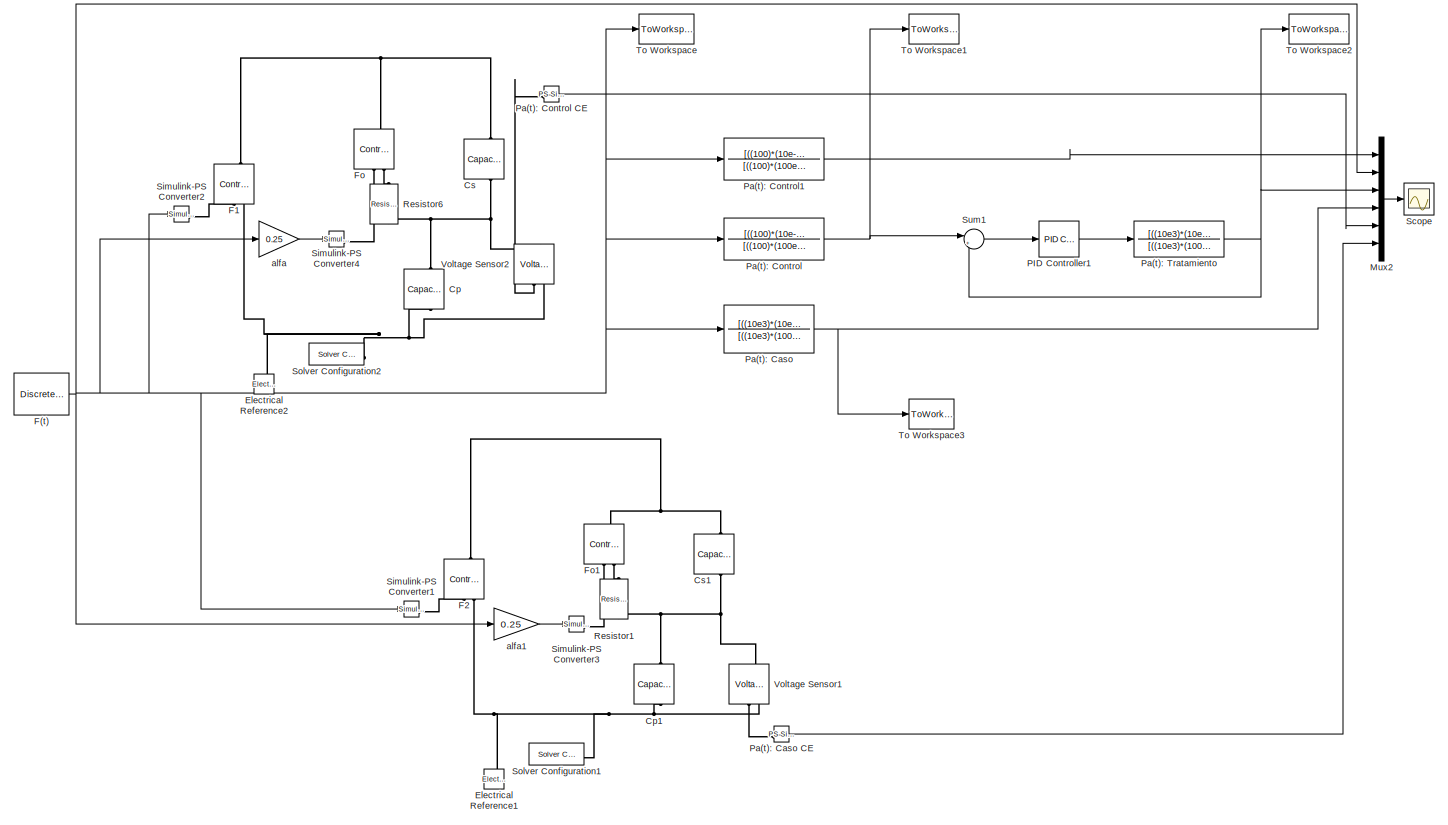
[diagram: root canvas - part 1/1, most of the canvas]
MODEL slx_dd049a4cbd30
KIND model
CONFIG AbsTol = auto
CONFIG EnableMultiTasking = off
CONFIG FixedStep = auto
CONFIG MaxStep = 1e-3
CONFIG MinStep = auto
CONFIG RelTol = 1e-3
CONFIG SampleTimeConstraint = Unconstrained
CONFIG SolverName = ode23t
CONFIG StartTime = 0.0
CONFIG StopTime = 10.0
BLOCK [Reference] Cp  REF=ee_lib/Passive/Capacitor
  NameLocation = left
  SourceBlock = ee_lib/Passive/Capacitor
  SourceType = Capacitor
BLOCK [Reference] Cp1  REF=ee_lib/Passive/Capacitor
  NameLocation = left
  SourceBlock = ee_lib/Passive/Capacitor
  SourceType = Capacitor
BLOCK [Reference] Cs  REF=ee_lib/Passive/Capacitor
  NameLocation = left
  SourceBlock = ee_lib/Passive/Capacitor
  SourceType = Capacitor
BLOCK [Reference] Cs1  REF=ee_lib/Passive/Capacitor
  NameLocation = left
  SourceBlock = ee_lib/Passive/Capacitor
  SourceType = Capacitor
BLOCK [Reference] Electrical Reference1  REF=fl_lib/Electrical/Electrical Elements/Electrical Reference
  LibrarySourceBlock = ee_lib/Connectors &\nReferences/Electrical Reference
  NameLocation = right
  SourceBlock = fl_lib/Electrical/Electrical Elements/Electrical Reference
  SourceType = Electrical Reference
BLOCK [Reference] Electrical Reference2  REF=fl_lib/Electrical/Electrical Elements/Electrical Reference
  LibrarySourceBlock = ee_lib/Connectors &\nReferences/Electrical Reference
  NameLocation = right
  SourceBlock = fl_lib/Electrical/Electrical Elements/Electrical Reference
  SourceType = Electrical Reference
BLOCK [DiscretePulseGenerator] F(t)
  Period = 10
  PhaseDelay = 1
  PulseType = Time based
  PulseWidth = 10
BLOCK [Reference] F1  REF=fl_lib/Electrical/Electrical Sources/Controlled Voltage
Source
  NameLocation = right
  SourceBlock = fl_lib/Electrical/Electrical Sources/Controlled Voltage\nSource
  SourceType = Controlled Voltage\nSource
BLOCK [Reference] F2  REF=fl_lib/Electrical/Electrical Sources/Controlled Voltage
Source
  NameLocation = right
  SourceBlock = fl_lib/Electrical/Electrical Sources/Controlled Voltage\nSource
  SourceType = Controlled Voltage\nSource
BLOCK [Reference] Fo  REF=fl_lib/Electrical/Electrical Sources/Controlled Voltage
Source
  NameLocation = right
  SourceBlock = fl_lib/Electrical/Electrical Sources/Controlled Voltage\nSource
  SourceType = Controlled Voltage\nSource
BLOCK [Reference] Fo1  REF=fl_lib/Electrical/Electrical Sources/Controlled Voltage
Source
  NameLocation = right
  SourceBlock = fl_lib/Electrical/Electrical Sources/Controlled Voltage\nSource
  SourceType = Controlled Voltage\nSource
BLOCK [Mux] Mux2
  DisplayOption = bar
  Inputs = 6
BLOCK [Reference] PID Controller1  REF=slpidlib/PID Controller
  LibrarySourceBlock = simulink/Continuous/PID Controller
  SourceBlock = slpidlib/PID Controller
  SourceType = PID 1dof
BLOCK [TransferFcn] Pa(t): Caso
  Denominator = [((10e3)*(100e-6))+((10e3)*(10e-6)),1]
  Numerator = [((10e3)*(10e-6)),1-(0.25)]
BLOCK [Reference] Pa(t): Caso CE   REF=nesl_utility/PS-Simulink
Converter
  SourceBlock = nesl_utility/PS-Simulink\nConverter
  SourceType = PS-Simulink\nConverter
BLOCK [TransferFcn] Pa(t): Control
  Denominator = [((100)*(100e-6))+((100)*(10e-6)),1]
  Numerator = [((100)*(10e-6)),1-(0.25)]
BLOCK [Reference] Pa(t): Control CE  REF=nesl_utility/PS-Simulink
Converter
  SourceBlock = nesl_utility/PS-Simulink\nConverter
  SourceType = PS-Simulink\nConverter
BLOCK [TransferFcn] Pa(t): Control1
  Denominator = [((100)*(100e-6))+((100)*(10e-6)),1]
  Numerator = [((100)*(10e-6)),1-(0.25)]
BLOCK [TransferFcn] Pa(t): Tratamiento
  Denominator = [((10e3)*(100e-6))+((10e3)*(10e-6)),1]
  Numerator = [((10e3)*(10e-6)),1-(0.25)]
BLOCK [Reference] Resistor1  REF=ee_lib/Passive/Resistor
  NameLocation = right
  SourceBlock = ee_lib/Passive/Resistor
  SourceType = Resistor
BLOCK [Reference] Resistor6  REF=ee_lib/Passive/Resistor
  NameLocation = right
  SourceBlock = ee_lib/Passive/Resistor
  SourceType = Resistor
BLOCK [Scope] Scope
  Floating = off
  NumInputPorts = 1
  ScopeSpecificationString = Simulink.scopes.TimeScopeBlockCfg('CurrentConfiguration', extmgr.ConfigurationSet(extmgr.Configuration('Core','General UI',true),extmgr.Configuration('Core','Source UI',true),extmgr.Configuration('Sources','WiredSimulink',true),extmgr.Configuration('Visuals','Time Domain',true,'SerializedDisplays',{struct('MinYLimReal','-0.13016','MaxYLimReal','1.12557','YLabelReal','','MinYLimMag','0.00000','MaxY...<+2081ch>
BLOCK [Reference] Simulink-PS Converter1  REF=nesl_utility/Simulink-PS
Converter
  SourceBlock = nesl_utility/Simulink-PS\nConverter
  SourceType = Simulink-PS\nConverter
BLOCK [Reference] Simulink-PS Converter2  REF=nesl_utility/Simulink-PS
Converter
  SourceBlock = nesl_utility/Simulink-PS\nConverter
  SourceType = Simulink-PS\nConverter
BLOCK [Reference] Simulink-PS Converter3  REF=nesl_utility/Simulink-PS
Converter
  SourceBlock = nesl_utility/Simulink-PS\nConverter
  SourceType = Simulink-PS\nConverter
BLOCK [Reference] Simulink-PS Converter4  REF=nesl_utility/Simulink-PS
Converter
  SourceBlock = nesl_utility/Simulink-PS\nConverter
  SourceType = Simulink-PS\nConverter
BLOCK [Reference] Solver Configuration1  REF=nesl_utility/Solver
Configuration
  SourceBlock = nesl_utility/Solver\nConfiguration
  SourceType = Solver\nConfiguration
BLOCK [Reference] Solver Configuration2  REF=nesl_utility/Solver
Configuration
  SourceBlock = nesl_utility/Solver\nConfiguration
  SourceType = Solver\nConfiguration
BLOCK [Sum] Sum1
  Inputs = |+-
BLOCK [ToWorkspace] To Workspace
  FixptAsFi = on
  MaxDataPoints = inf
  SampleTime = -1
  VariableName = F
BLOCK [ToWorkspace] To Workspace1
  FixptAsFi = on
  MaxDataPoints = inf
  SampleTime = -1
  VariableName = Fs1
BLOCK [ToWorkspace] To Workspace2
  FixptAsFi = on
  MaxDataPoints = inf
  SampleTime = -1
  VariableName = Fs3
BLOCK [ToWorkspace] To Workspace3
  FixptAsFi = on
  MaxDataPoints = inf
  SampleTime = -1
  VariableName = Fs2
BLOCK [Reference] Voltage Sensor1  REF=fl_lib/Electrical/Electrical Sensors/Voltage Sensor
  NameLocation = right
  SourceBlock = fl_lib/Electrical/Electrical Sensors/Voltage Sensor
  SourceType = Voltage Sensor
BLOCK [Reference] Voltage Sensor2  REF=fl_lib/Electrical/Electrical Sensors/Voltage Sensor
  NameLocation = right
  SourceBlock = fl_lib/Electrical/Electrical Sensors/Voltage Sensor
  SourceType = Voltage Sensor
BLOCK [Gain] alfa
  Gain = 0.25
BLOCK [Gain] alfa1
  Gain = 0.25
NET F(t):1 -> Mux2:2, Pa(t): Caso:1, Pa(t): Control1:1, Pa(t): Control:1, Simulink-PS Converter1:1, Simulink-PS Converter2:1, To Workspace:1, alfa1:1, alfa:1
LINE Mux2:1 -> Scope:1
LINE PID Controller1:1 -> Pa(t): Tratamiento:1
LINE Pa(t): Caso CE :1 -> Mux2:6
NET Pa(t): Caso:1 -> Mux2:4, To Workspace3:1
LINE Pa(t): Control CE:1 -> Mux2:5
LINE Pa(t): Control1:1 -> Mux2:1
NET Pa(t): Control:1 -> Sum1:1, To Workspace1:1
NET Pa(t): Tratamiento:1 -> Mux2:3, Sum1:2, To Workspace2:1
LINE Sum1:1 -> PID Controller1:1
LINE alfa1:1 -> Simulink-PS Converter3:1
LINE alfa:1 -> Simulink-PS Converter4:1
PNET net1: Cp1:LConn1 -- Cs1:RConn1 -- Resistor1:RConn1 -- Voltage Sensor1:LConn1
PNET net2: Cp1:RConn1 -- Electrical Reference1:LConn1 -- F2:RConn2 -- Solver Configuration1:RConn1 -- Voltage Sensor1:RConn2
PNET net3: Cp:LConn1 -- Cs:RConn1 -- Resistor6:RConn1 -- Voltage Sensor2:LConn1
PNET net4: Cp:RConn1 -- Electrical Reference2:LConn1 -- F1:RConn2 -- Solver Configuration2:RConn1 -- Voltage Sensor2:RConn2
PNET net5: Cs1:LConn1 -- F2:LConn1 -- Fo1:LConn1
PNET net6: Cs:LConn1 -- F1:LConn1 -- Fo:LConn1
PLINE F1:RConn1 -- Simulink-PS Converter2:RConn1
PLINE F2:RConn1 -- Simulink-PS Converter1:RConn1
PLINE Fo1:RConn1 -- Simulink-PS Converter3:RConn1
PLINE Fo1:RConn2 -- Resistor1:LConn1
PLINE Fo:RConn1 -- Simulink-PS Converter4:RConn1
PLINE Fo:RConn2 -- Resistor6:LConn1
PLINE Pa(t): Caso CE :LConn1 -- Voltage Sensor1:RConn1
PLINE Pa(t): Control CE:LConn1 -- Voltage Sensor2:RConn1
note: NET lines group one-source signal fan-out (src -> all destinations, sorted); 1:1 wires keep LINE; PNET lines group multi-terminal physical nets as a canonical sorted terminal list (undirected conserving connections); 2-terminal nets keep the pairwise PLINE form
